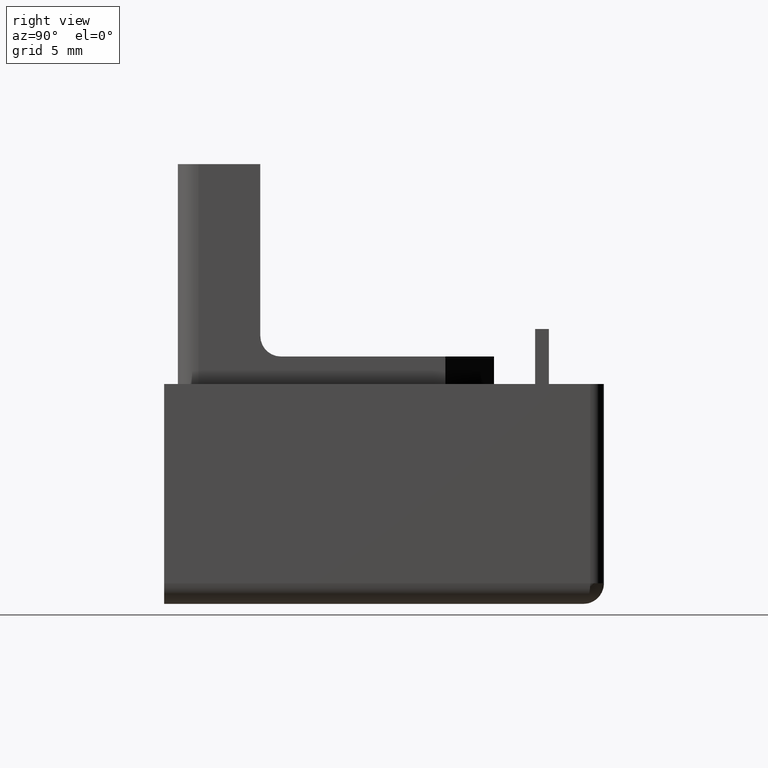
[diagram: clean part render]
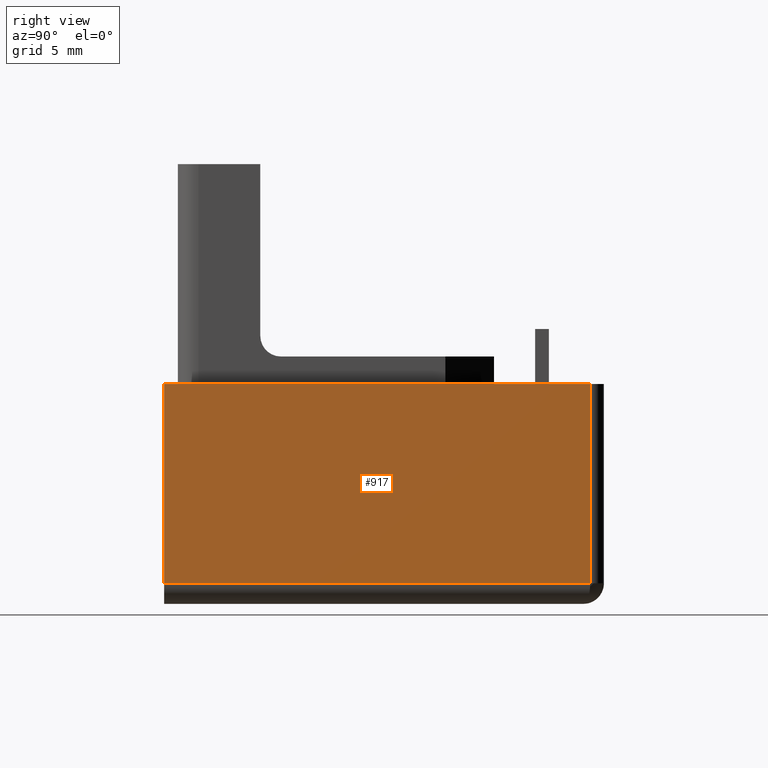
[diagram: same view with one face highlighted and labeled with its STEP entity id]
A machine part, right view. The second image highlights one B-rep face of the part: STEP entity #917.
In plain terms, the highlighted planar face has unit normal (1, 0, 0).
Its self-contained STEP definition (entity closure, byte-faithful):
#49=PLANE('',#990);
#56=LINE('',#1326,#161);
#59=LINE('',#1334,#164);
#154=LINE('',#1557,#259);
#155=LINE('',#1559,#260);
#161=VECTOR('',#1019,31.);
#164=VECTOR('',#1028,14.5);
#259=VECTOR('',#1233,14.5);
#260=VECTOR('',#1236,31.);
#320=FACE_OUTER_BOUND('',#371,.T.);
#371=EDGE_LOOP('',(#851,#852,#853,#854));
#398=VERTEX_POINT('',#1273);
#406=VERTEX_POINT('',#1325);
#408=VERTEX_POINT('',#1333);
#481=VERTEX_POINT('',#1555);
#493=EDGE_CURVE('',#398,#406,#56,.T.);
#497=EDGE_CURVE('',#406,#408,#59,.T.);
#608=EDGE_CURVE('',#398,#481,#154,.T.);
#609=EDGE_CURVE('',#408,#481,#155,.T.);
#851=ORIENTED_EDGE('',*,*,#493,.F.);
#852=ORIENTED_EDGE('',*,*,#608,.T.);
#853=ORIENTED_EDGE('',*,*,#609,.F.);
#854=ORIENTED_EDGE('',*,*,#497,.F.);
#917=ADVANCED_FACE('',(#320),#49,.T.);
#990=AXIS2_PLACEMENT_3D('',#1558,#1234,#1235);
#1019=DIRECTION('',(0.,-1.,0.));
#1028=DIRECTION('',(0.,0.,1.));
#1233=DIRECTION('',(0.,0.,1.));
#1234=DIRECTION('center_axis',(1.,0.,0.));
#1235=DIRECTION('ref_axis',(0.,1.,0.));
#1236=DIRECTION('',(0.,1.,0.));
#1273=CARTESIAN_POINT('',(14.,15.5,-6.5));
#1325=CARTESIAN_POINT('',(14.,-15.5,-6.5));
#1326=CARTESIAN_POINT('',(14.,-7.61050153304082,-6.5));
#1333=CARTESIAN_POINT('',(14.,-15.5,8.));
#1334=CARTESIAN_POINT('',(14.,-15.5,0.));
#1555=CARTESIAN_POINT('',(14.,15.5,8.));
#1557=CARTESIAN_POINT('',(14.,15.5,0.));
#1558=CARTESIAN_POINT('Origin',(14.,-15.5,0.));
#1559=CARTESIAN_POINT('',(14.,-15.5,8.));